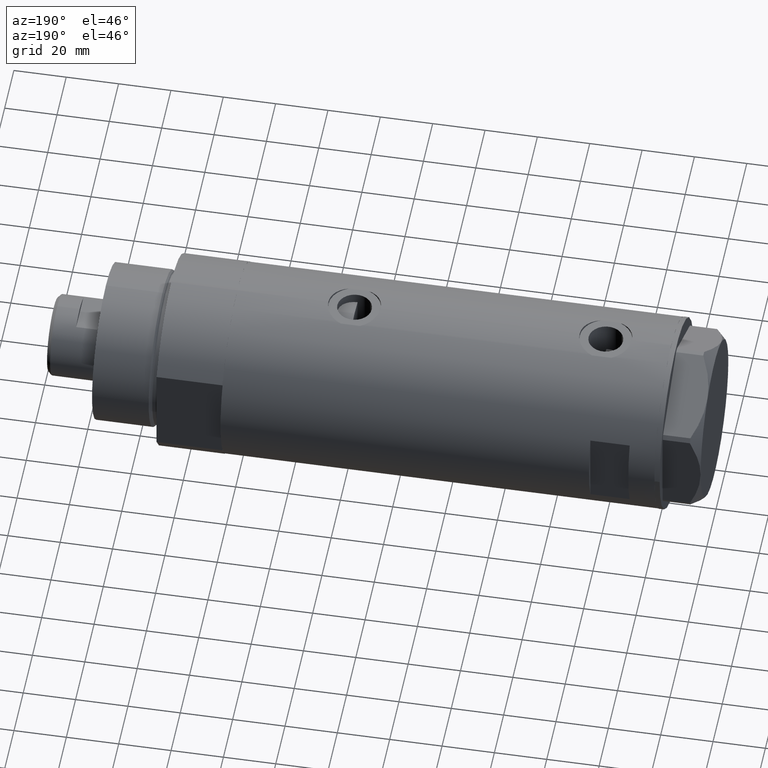
[diagram: clean part render]
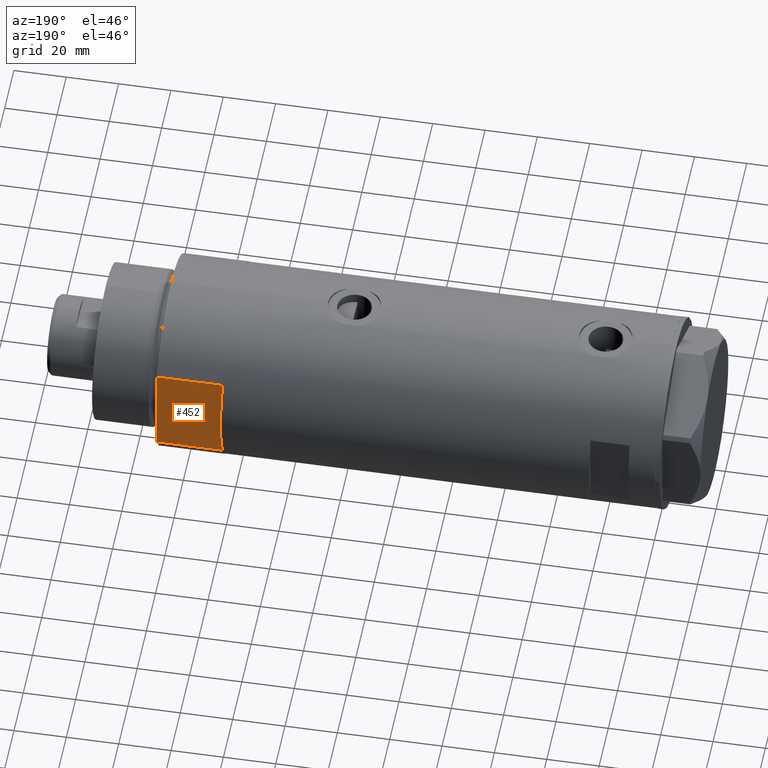
[diagram: same view with one face highlighted and labeled with its STEP entity id]
A machine part, auxiliary view. The second image highlights one B-rep face of the part: STEP entity #452.
In plain terms, the highlighted planar face has unit normal (0, -1, -0).
Its self-contained STEP definition (entity closure, byte-faithful):
#84 = CARTESIAN_POINT ( 'NONE',  ( 17.55704986607943496, 32.00000000000000000, 25.19999999999999929 ) ) ;
#179 = ORIENTED_EDGE ( 'NONE', *, *, #3157, .T. ) ;
#247 = LINE ( 'NONE', #2306, #4278 ) ;
#263 = VERTEX_POINT ( 'NONE', #1703 ) ;
#393 = DIRECTION ( 'NONE',  ( -0.000000000000000000, -0.000000000000000000, 1.000000000000000000 ) ) ;
#452 = ADVANCED_FACE ( 'NONE', ( #4046 ), #3678, .F. ) ;
#484 = EDGE_CURVE ( 'NONE', #3821, #263, #247, .T. ) ;
#558 = DIRECTION ( 'NONE',  ( 0.000000000000000000, -1.000000000000000000, 0.000000000000000000 ) ) ;
#576 = AXIS2_PLACEMENT_3D ( 'NONE', #3706, #558, #1617 ) ;
#579 = VECTOR ( 'NONE', #2386, 1000.000000000000000 ) ;
#677 = LINE ( 'NONE', #2013, #579 ) ;
#828 = EDGE_CURVE ( 'NONE', #263, #1849, #677, .T. ) ;
#973 = CARTESIAN_POINT ( 'NONE',  ( -17.55704986607943141, 32.00000000000000000, 0.000000000000000000 ) ) ;
#993 = LINE ( 'NONE', #973, #2824 ) ;
#1495 = LINE ( 'NONE', #2464, #3864 ) ;
#1617 = DIRECTION ( 'NONE',  ( 0.000000000000000000, -0.000000000000000000, -1.000000000000000000 ) ) ;
#1703 = CARTESIAN_POINT ( 'NONE',  ( 0.000000000000000000, 32.00000000000000000, 0.000000000000000000 ) ) ;
#1746 = LINE ( 'NONE', #4265, #2183 ) ;
#1849 = VERTEX_POINT ( 'NONE', #3180 ) ;
#2013 = CARTESIAN_POINT ( 'NONE',  ( -17.55704986607943141, 32.00000000000000000, 0.000000000000000000 ) ) ;
#2061 = VERTEX_POINT ( 'NONE', #3247 ) ;
#2183 = VECTOR ( 'NONE', #393, 1000.000000000000000 ) ;
#2227 = ORIENTED_EDGE ( 'NONE', *, *, #3740, .F. ) ;
#2239 = EDGE_LOOP ( 'NONE', ( #3397, #2227, #4149, #4077, #179 ) ) ;
#2283 = CARTESIAN_POINT ( 'NONE',  ( -17.55704986607943141, 32.00000000000000000, 0.000000000000000000 ) ) ;
#2306 = CARTESIAN_POINT ( 'NONE',  ( -17.55704986607943141, 32.00000000000000000, 0.000000000000000000 ) ) ;
#2386 = DIRECTION ( 'NONE',  ( 1.000000000000000000, 0.000000000000000000, 0.000000000000000000 ) ) ;
#2464 = CARTESIAN_POINT ( 'NONE',  ( -17.55704986607943141, 32.00000000000000000, 25.19999999999999929 ) ) ;
#2824 = VECTOR ( 'NONE', #4174, 1000.000000000000000 ) ;
#3157 = EDGE_CURVE ( 'NONE', #3821, #2061, #993, .T. ) ;
#3180 = CARTESIAN_POINT ( 'NONE',  ( 17.55704986607943496, 32.00000000000000000, 0.000000000000000000 ) ) ;
#3185 = DIRECTION ( 'NONE',  ( 1.000000000000000000, 0.000000000000000000, 0.000000000000000000 ) ) ;
#3247 = CARTESIAN_POINT ( 'NONE',  ( -17.55704986607943496, 32.00000000000000000, 25.19999999999999929 ) ) ;
#3311 = EDGE_CURVE ( 'NONE', #2061, #3369, #1495, .T. ) ;
#3369 = VERTEX_POINT ( 'NONE', #84 ) ;
#3397 = ORIENTED_EDGE ( 'NONE', *, *, #3311, .T. ) ;
#3678 = PLANE ( 'NONE',  #576 ) ;
#3706 = CARTESIAN_POINT ( 'NONE',  ( -17.55704986607943141, 32.00000000000000000, 0.000000000000000000 ) ) ;
#3740 = EDGE_CURVE ( 'NONE', #1849, #3369, #1746, .T. ) ;
#3821 = VERTEX_POINT ( 'NONE', #2283 ) ;
#3864 = VECTOR ( 'NONE', #3185, 1000.000000000000000 ) ;
#4046 = FACE_OUTER_BOUND ( 'NONE', #2239, .T. ) ;
#4077 = ORIENTED_EDGE ( 'NONE', *, *, #484, .F. ) ;
#4149 = ORIENTED_EDGE ( 'NONE', *, *, #828, .F. ) ;
#4174 = DIRECTION ( 'NONE',  ( -0.000000000000000000, -0.000000000000000000, 1.000000000000000000 ) ) ;
#4265 = CARTESIAN_POINT ( 'NONE',  ( 17.55704986607943141, 32.00000000000000000, 0.000000000000000000 ) ) ;
#4278 = VECTOR ( 'NONE', #4459, 1000.000000000000000 ) ;
#4459 = DIRECTION ( 'NONE',  ( 1.000000000000000000, 0.000000000000000000, 0.000000000000000000 ) ) ;